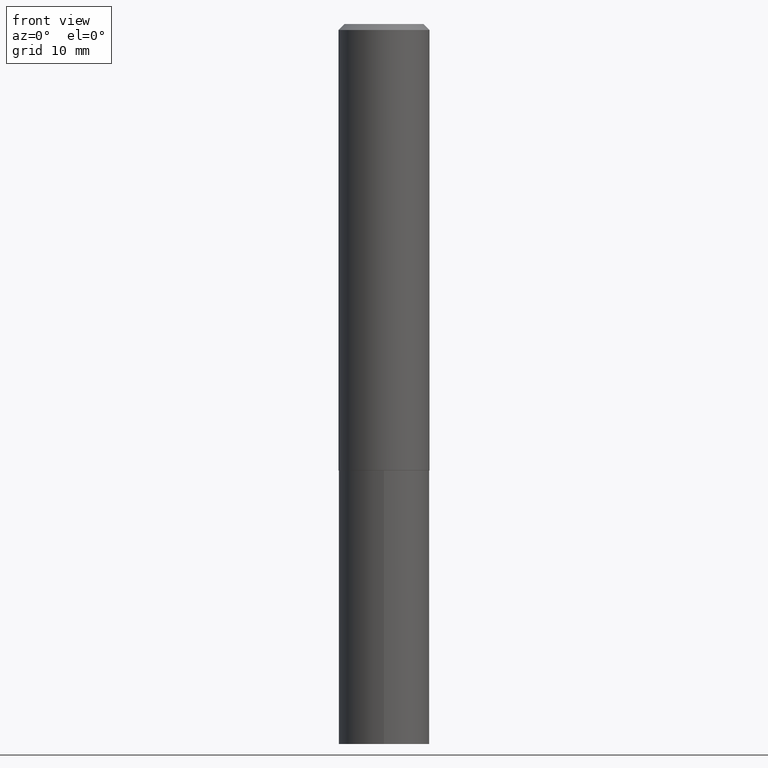
[diagram: clean part render]
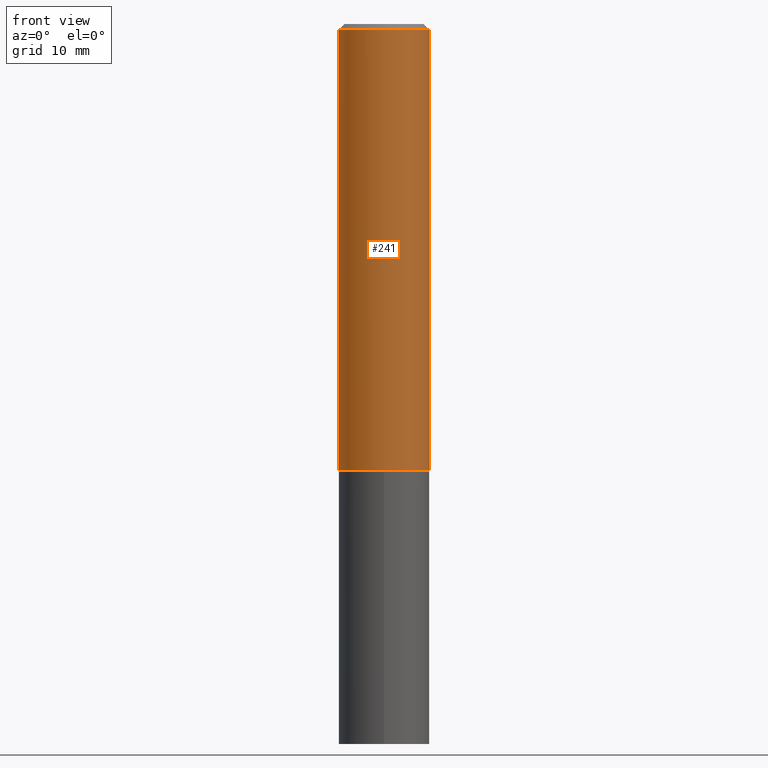
[diagram: same view with one face highlighted and labeled with its STEP entity id]
A machine part, front view. The second image highlights one B-rep face of the part: STEP entity #241.
In plain terms, the highlighted cylindrical surface (partial cylindrical patch) has radius 5.9995 mm, axis along (-0, 0, 1).
Its self-contained STEP definition (entity closure, byte-faithful):
#13 = CARTESIAN_POINT ( 'NONE',  ( 7.642090019328602662E-31, -1.091087918388490267E-16, -0.03125000000000020817 ) ) ;
#14 = VERTEX_POINT ( 'NONE', #157 ) ;
#36 = DIRECTION ( 'NONE',  ( -2.445468806185136877E-29, 3.491481338843145188E-15, 1.000000000000000000 ) ) ;
#56 = CARTESIAN_POINT ( 'NONE',  ( 0.2362000000000001598, -1.649375784469497314E-15, 1.151752954443000929E-29 ) ) ;
#61 = CARTESIAN_POINT ( 'NONE',  ( 5.670308520901476204E-29, -8.095697780375601716E-15, -2.318700000000000205 ) ) ;
#70 = EDGE_LOOP ( 'NONE', ( #131, #251, #268, #235 ) ) ;
#72 = EDGE_CURVE ( 'NONE', #353, #325, #79, .T. ) ;
#78 = CARTESIAN_POINT ( 'NONE',  ( -0.2362000000000003264, -6.417395838510242955E-15, -2.318700000000000205 ) ) ;
#79 = LINE ( 'NONE', #299, #306 ) ;
#83 = AXIS2_PLACEMENT_3D ( 'NONE', #61, #140, #286 ) ;
#92 = LINE ( 'NONE', #56, #351 ) ;
#104 = CARTESIAN_POINT ( 'NONE',  ( -0.2361999999999999933, -2.424101344241866648E-15, -0.03125000000000020817 ) ) ;
#116 = DIRECTION ( 'NONE',  ( -2.445468806185136597E-29, 3.491481338843145583E-15, 1.000000000000000000 ) ) ;
#131 = ORIENTED_EDGE ( 'NONE', *, *, #72, .F. ) ;
#140 = DIRECTION ( 'NONE',  ( -2.445468806185136597E-29, 3.491481338843145583E-15, 1.000000000000000000 ) ) ;
#144 = CIRCLE ( 'NONE', #83, 0.2362000000000003264 ) ;
#145 = DIRECTION ( 'NONE',  ( 1.000000000000000000, -6.982962677686266711E-15, 4.876176775795936353E-29 ) ) ;
#146 = EDGE_CURVE ( 'NONE', #353, #14, #144, .T. ) ;
#157 = CARTESIAN_POINT ( 'NONE',  ( 0.2362000000000003264, -9.745073564845101397E-15, -2.318700000000000205 ) ) ;
#166 = EDGE_CURVE ( 'NONE', #14, #277, #92, .T. ) ;
#168 = CYLINDRICAL_SURFACE ( 'NONE', #174, 0.2362000000000001598 ) ;
#174 = AXIS2_PLACEMENT_3D ( 'NONE', #260, #116, #145 ) ;
#176 = DIRECTION ( 'NONE',  ( -2.445468806185136597E-29, 3.491481338843145583E-15, 1.000000000000000000 ) ) ;
#194 = CARTESIAN_POINT ( 'NONE',  ( 0.2361999999999999933, -1.758484576308345231E-15, -0.03125000000000020817 ) ) ;
#235 = ORIENTED_EDGE ( 'NONE', *, *, #301, .F. ) ;
#241 = ADVANCED_FACE ( 'NONE', ( #289 ), #168, .T. ) ;
#251 = ORIENTED_EDGE ( 'NONE', *, *, #146, .T. ) ;
#260 = CARTESIAN_POINT ( 'NONE',  ( 0.000000000000000000, 0.000000000000000000, 0.000000000000000000 ) ) ;
#268 = ORIENTED_EDGE ( 'NONE', *, *, #166, .T. ) ;
#274 = AXIS2_PLACEMENT_3D ( 'NONE', #13, #176, #333 ) ;
#277 = VERTEX_POINT ( 'NONE', #194 ) ;
#286 = DIRECTION ( 'NONE',  ( 1.000000000000000000, -6.982962677686270655E-15, 0.000000000000000000 ) ) ;
#289 = FACE_OUTER_BOUND ( 'NONE', #70, .T. ) ;
#299 = CARTESIAN_POINT ( 'NONE',  ( -0.2362000000000001598, 1.678301941865357775E-15, -1.161852468318209598E-29 ) ) ;
#301 = EDGE_CURVE ( 'NONE', #325, #277, #361, .T. ) ;
#303 = DIRECTION ( 'NONE',  ( -2.445468806185136877E-29, 3.491481338843145188E-15, 1.000000000000000000 ) ) ;
#306 = VECTOR ( 'NONE', #303, 39.37007874015748143 ) ;
#325 = VERTEX_POINT ( 'NONE', #104 ) ;
#333 = DIRECTION ( 'NONE',  ( 1.000000000000000000, -6.982962677686266711E-15, 0.000000000000000000 ) ) ;
#351 = VECTOR ( 'NONE', #36, 39.37007874015748143 ) ;
#353 = VERTEX_POINT ( 'NONE', #78 ) ;
#361 = CIRCLE ( 'NONE', #274, 0.2361999999999999933 ) ;